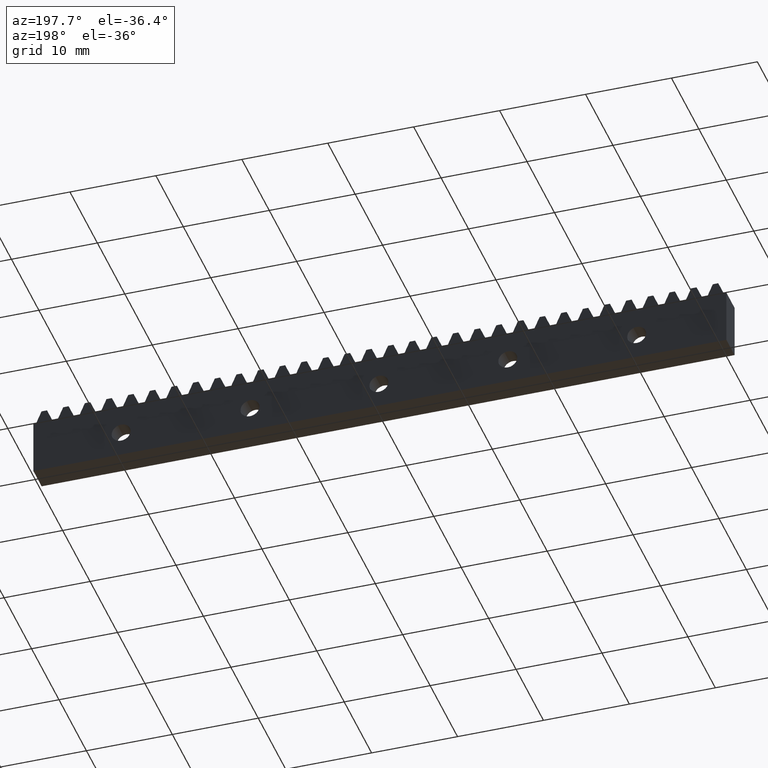
[diagram: clean part render]
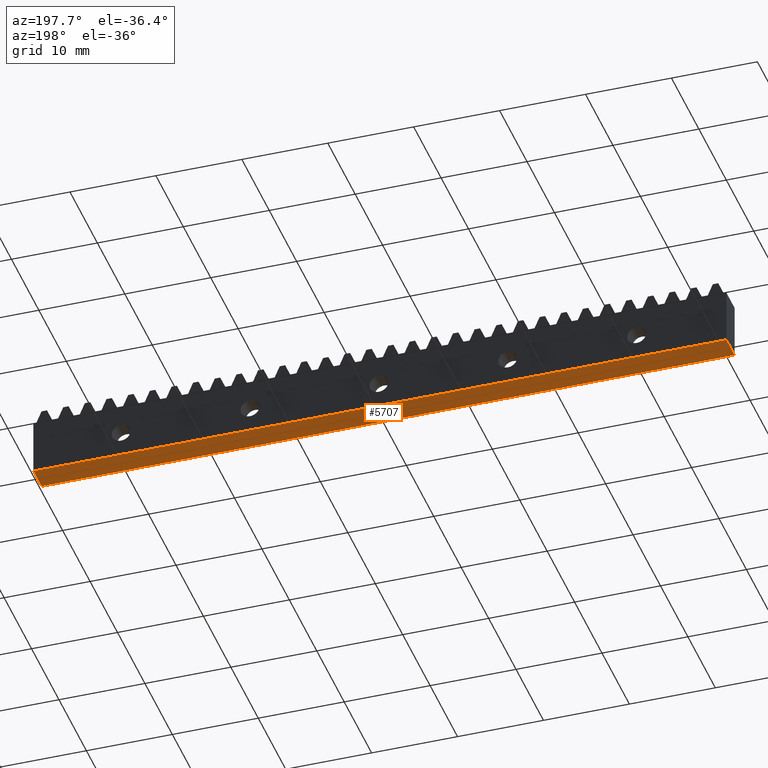
[diagram: same view with one face highlighted and labeled with its STEP entity id]
A machine part, auxiliary view. The second image highlights one B-rep face of the part: STEP entity #5707.
In plain terms, the highlighted face is a freeform B-spline surface patch.
Its self-contained STEP definition (entity closure, byte-faithful):
#1691=CARTESIAN_POINT('',(-40.430000999999997,0.0,0.0));
#1692=VERTEX_POINT('',#1691);
#2601=CARTESIAN_POINT('',(40.210005999999893,0.0,0.0));
#2602=VERTEX_POINT('',#2601);
#2608=CARTESIAN_POINT('',(-40.430000999999997,0.0,0.0));
#2609=CARTESIAN_POINT('',(40.210005999999893,0.0,0.0));
#2610=QUASI_UNIFORM_CURVE('',1,(#2608,#2609),.UNSPECIFIED.,.F.,.U.);
#2611=EDGE_CURVE('',#1692,#2602,#2610,.T.);
#2653=CARTESIAN_POINT('',(-40.430000999999997,-3.000000000000115,0.0));
#2654=VERTEX_POINT('',#2653);
#2660=CARTESIAN_POINT('',(40.210005999999893,-3.000000000000115,0.0));
#2661=VERTEX_POINT('',#2660);
#2662=CARTESIAN_POINT('',(-40.430000999999997,-3.000000000000115,0.0));
#2663=CARTESIAN_POINT('',(40.210005999999893,-3.000000000000115,0.0));
#2664=QUASI_UNIFORM_CURVE('',1,(#2662,#2663),.UNSPECIFIED.,.F.,.U.);
#2665=EDGE_CURVE('',#2654,#2661,#2664,.T.);
#5684=CARTESIAN_POINT('',(40.210005999999893,-3.000000000000115,0.0));
#5685=CARTESIAN_POINT('',(40.210005999999893,0.0,0.0));
#5686=QUASI_UNIFORM_CURVE('',1,(#5684,#5685),.UNSPECIFIED.,.F.,.U.);
#5687=EDGE_CURVE('',#2661,#2602,#5686,.T.);
#5692=CARTESIAN_POINT('',(-44.457968436363323,-3.149849994185539,0.0));
#5693=CARTESIAN_POINT('',(44.237976320274591,-3.149849994185539,0.0));
#5694=CARTESIAN_POINT('',(-44.457968436363323,0.149850074651694,0.0));
#5695=CARTESIAN_POINT('',(44.237976320274591,0.149850074651694,0.0));
#5696=B_SPLINE_SURFACE_WITH_KNOTS('',1,1,((#5692,#5694),(#5693,#5695)),.UNSPECIFIED.,.F.,.F.,.U.,(2,2),(2,2),(0.0,88.695944756637914),(0.0,3.299700068837233),.UNSPECIFIED.);
#5697=ORIENTED_EDGE('',*,*,#2611,.T.);
#5698=ORIENTED_EDGE('',*,*,#5687,.F.);
#5699=ORIENTED_EDGE('',*,*,#2665,.F.);
#5700=CARTESIAN_POINT('',(-40.430000999999997,-3.000000000000115,0.0));
#5701=CARTESIAN_POINT('',(-40.430000999999997,0.0,0.0));
#5702=QUASI_UNIFORM_CURVE('',1,(#5700,#5701),.UNSPECIFIED.,.F.,.U.);
#5703=EDGE_CURVE('',#2654,#1692,#5702,.T.);
#5704=ORIENTED_EDGE('',*,*,#5703,.T.);
#5705=EDGE_LOOP('',(#5697,#5698,#5699,#5704));
#5706=FACE_OUTER_BOUND('',#5705,.T.);
#5707=ADVANCED_FACE('',(#5706),#5696,.F.);